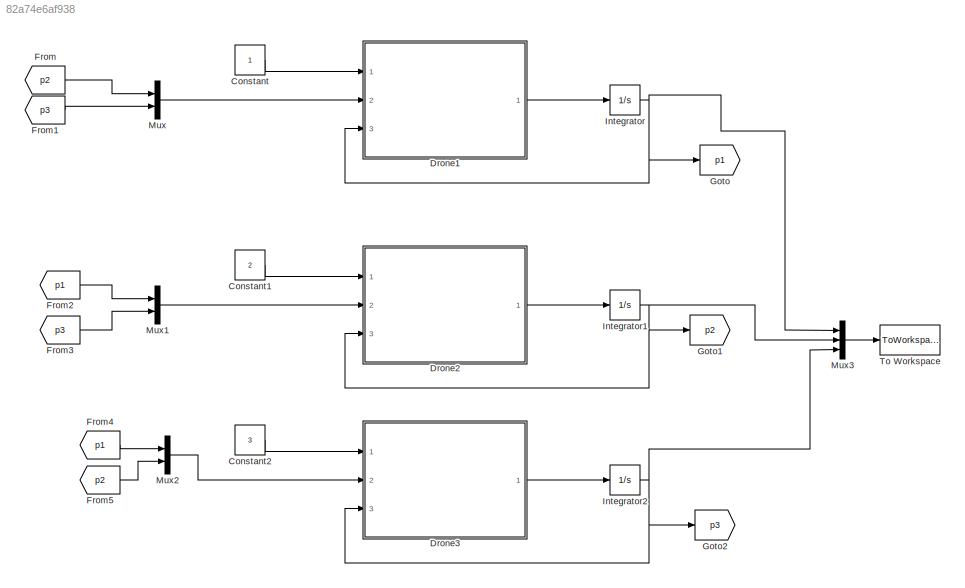
MODEL slx_82a74e6af938
KIND model
CONFIG AbsTol = auto
CONFIG EnableMultiTasking = off
CONFIG FixedStep = auto
CONFIG MaxStep = auto
CONFIG MinStep = auto
CONFIG RelTol = 1e-3
CONFIG SampleTimeConstraint = Unconstrained
CONFIG Solver = VariableStepAuto
CONFIG SolverName = VariableStepAuto
CONFIG StartTime = 0.0
CONFIG StopTime = 10.0
BLOCK [Constant] Constant
BLOCK [Constant] Constant1
  Value = 2
BLOCK [Constant] Constant2
  Value = 3
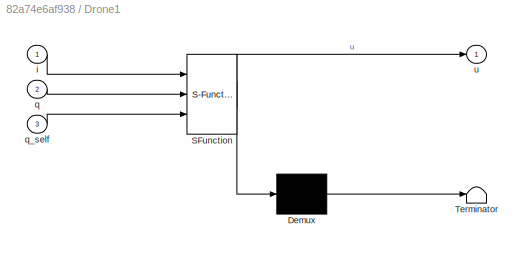
BLOCK [SubSystem] Drone1
  ErrorFcn = Stateflow.Translate.translate
  PermitHierarchicalResolution = ExplicitOnly
  Ports = [3, 1]
  RequestExecContextInheritance = off
  SFBlockType = MATLAB Function
  TreatAsAtomicUnit = on
BLOCK [Demux] Drone1/ Demux 
  Outputs = 1
  Ports = [1, 1]
BLOCK [S-Function] Drone1/ SFunction 
  EnableBusSupport = on
  FunctionName = sf_sfun
  Parameters = A,dist_des,num_neighbors
  PortCounts = [3 2]
  Ports = [3, 2]
  SFcnIsStateOwnerBlock = off
  SFunctionDeploymentMode = off
  Tag = Stateflow S-Function cams_prova 2
BLOCK [Terminator] Drone1/ Terminator 
BLOCK [Inport] Drone1/i
  IconDisplay = Port number
BLOCK [Inport] Drone1/q
  IconDisplay = Port number
  Port = 2
BLOCK [Inport] Drone1/q_self
  IconDisplay = Port number
  Port = 3
BLOCK [Outport] Drone1/u
  IconDisplay = Port number
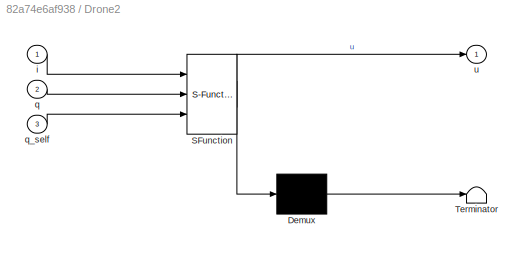
BLOCK [SubSystem] Drone2
  ErrorFcn = Stateflow.Translate.translate
  PermitHierarchicalResolution = ExplicitOnly
  Ports = [3, 1]
  RequestExecContextInheritance = off
  SFBlockType = MATLAB Function
  TreatAsAtomicUnit = on
BLOCK [Demux] Drone2/ Demux 
  Outputs = 1
  Ports = [1, 1]
BLOCK [S-Function] Drone2/ SFunction 
  EnableBusSupport = on
  FunctionName = sf_sfun
  Parameters = A,dist_des,num_neighbors
  PortCounts = [3 2]
  Ports = [3, 2]
  SFcnIsStateOwnerBlock = off
  SFunctionDeploymentMode = off
  Tag = Stateflow S-Function cams_prova 1
BLOCK [Terminator] Drone2/ Terminator 
BLOCK [Inport] Drone2/i
  IconDisplay = Port number
BLOCK [Inport] Drone2/q
  IconDisplay = Port number
  Port = 2
BLOCK [Inport] Drone2/q_self
  IconDisplay = Port number
  Port = 3
BLOCK [Outport] Drone2/u
  IconDisplay = Port number
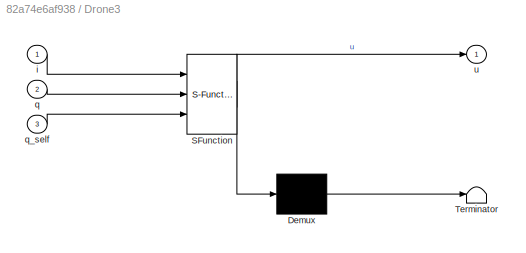
BLOCK [SubSystem] Drone3
  ErrorFcn = Stateflow.Translate.translate
  PermitHierarchicalResolution = ExplicitOnly
  Ports = [3, 1]
  RequestExecContextInheritance = off
  SFBlockType = MATLAB Function
  TreatAsAtomicUnit = on
BLOCK [Demux] Drone3/ Demux 
  Outputs = 1
  Ports = [1, 1]
BLOCK [S-Function] Drone3/ SFunction 
  EnableBusSupport = on
  FunctionName = sf_sfun
  Parameters = A,dist_des,num_neighbors
  PortCounts = [3 2]
  Ports = [3, 2]
  SFcnIsStateOwnerBlock = off
  SFunctionDeploymentMode = off
  Tag = Stateflow S-Function cams_prova 3
BLOCK [Terminator] Drone3/ Terminator 
BLOCK [Inport] Drone3/i
  IconDisplay = Port number
BLOCK [Inport] Drone3/q
  IconDisplay = Port number
  Port = 2
BLOCK [Inport] Drone3/q_self
  IconDisplay = Port number
  Port = 3
BLOCK [Outport] Drone3/u
  IconDisplay = Port number
BLOCK [From] From
  GotoTag = p2
BLOCK [From] From1
  GotoTag = p3
BLOCK [From] From2
  GotoTag = p1
BLOCK [From] From3
  GotoTag = p3
BLOCK [From] From4
  GotoTag = p1
BLOCK [From] From5
  GotoTag = p2
BLOCK [Goto] Goto
  GotoTag = p1
BLOCK [Goto] Goto1
  GotoTag = p2
BLOCK [Goto] Goto2
  GotoTag = p3
BLOCK [Integrator] Integrator
  InitialCondition = q0(1:3)
  Ports = [1, 1]
BLOCK [Integrator] Integrator1
  InitialCondition = q0(4:6)
  Ports = [1, 1]
BLOCK [Integrator] Integrator2
  InitialCondition = q0(7:9)
  Ports = [1, 1]
BLOCK [Mux] Mux
  DisplayOption = bar
  Inputs = 2
  Ports = [2, 1]
BLOCK [Mux] Mux1
  DisplayOption = bar
  Inputs = 2
  Ports = [2, 1]
BLOCK [Mux] Mux2
  DisplayOption = bar
  Inputs = 2
  Ports = [2, 1]
BLOCK [Mux] Mux3
  DisplayOption = bar
  Inputs = 3
  Ports = [3, 1]
BLOCK [ToWorkspace] To Workspace
  FixptAsFi = on
  MaxDataPoints = inf
  Ports = [1]
  SampleTime = -1
  Save2DSignal = 3-D array (concatenate along third dimension)
  SaveFormat = Timeseries
  VariableName = state
LINE Constant1:1 -> Drone2:1
LINE Constant2:1 -> Drone3:1
LINE Constant:1 -> Drone1:1
LINE Drone1:1 -> Integrator:1
LINE Drone2:1 -> Integrator1:1
LINE Drone3:1 -> Integrator2:1
LINE From1:1 -> Mux:2
LINE From2:1 -> Mux1:1
LINE From3:1 -> Mux1:2
LINE From4:1 -> Mux2:1
LINE From5:1 -> Mux2:2
LINE From:1 -> Mux:1
NET Integrator1:1 -> Drone2:3, Goto1:1, Mux3:2
NET Integrator2:1 -> Drone3:3, Goto2:1, Mux3:3
NET Integrator:1 -> Drone1:3, Goto:1, Mux3:1
LINE Mux1:1 -> Drone2:2
LINE Mux2:1 -> Drone3:2
LINE Mux3:1 -> To Workspace:1
LINE Mux:1 -> Drone1:2
note: NET lines group one-source signal fan-out (src -> all destinations, sorted); 1:1 wires keep LINE
CHART Drone2 states=1 transitions=1
  STATE_LABEL 'eML_blk_kernel()'
  STATE_LABEL 'SCRIPT:\nfunction u = fcn(A, i, q, q_self, dist_des, num_neighbors)\nu=[0;0;0];\nk=2.5;\n    for j=1:1:num_neighbors\n        dist=norm(q(j:j+2)-q_self);\n        u=u+A(i:i+2,j:j+2)*(q(j:j+2)-q_self)+k*atan(dist-dist_des(i,j:j+2))*(q(j:j+2)-q_self);\n    end\nend \n'  <repeated x3 — deduplicated; at blocks: Drone2, Drone1, Drone3>
CHART Drone1 states=1 transitions=1
  STATE_LABEL 'eML_blk_kernel()'
CHART Drone3 states=1 transitions=1
  STATE_LABEL 'eML_blk_kernel()'
